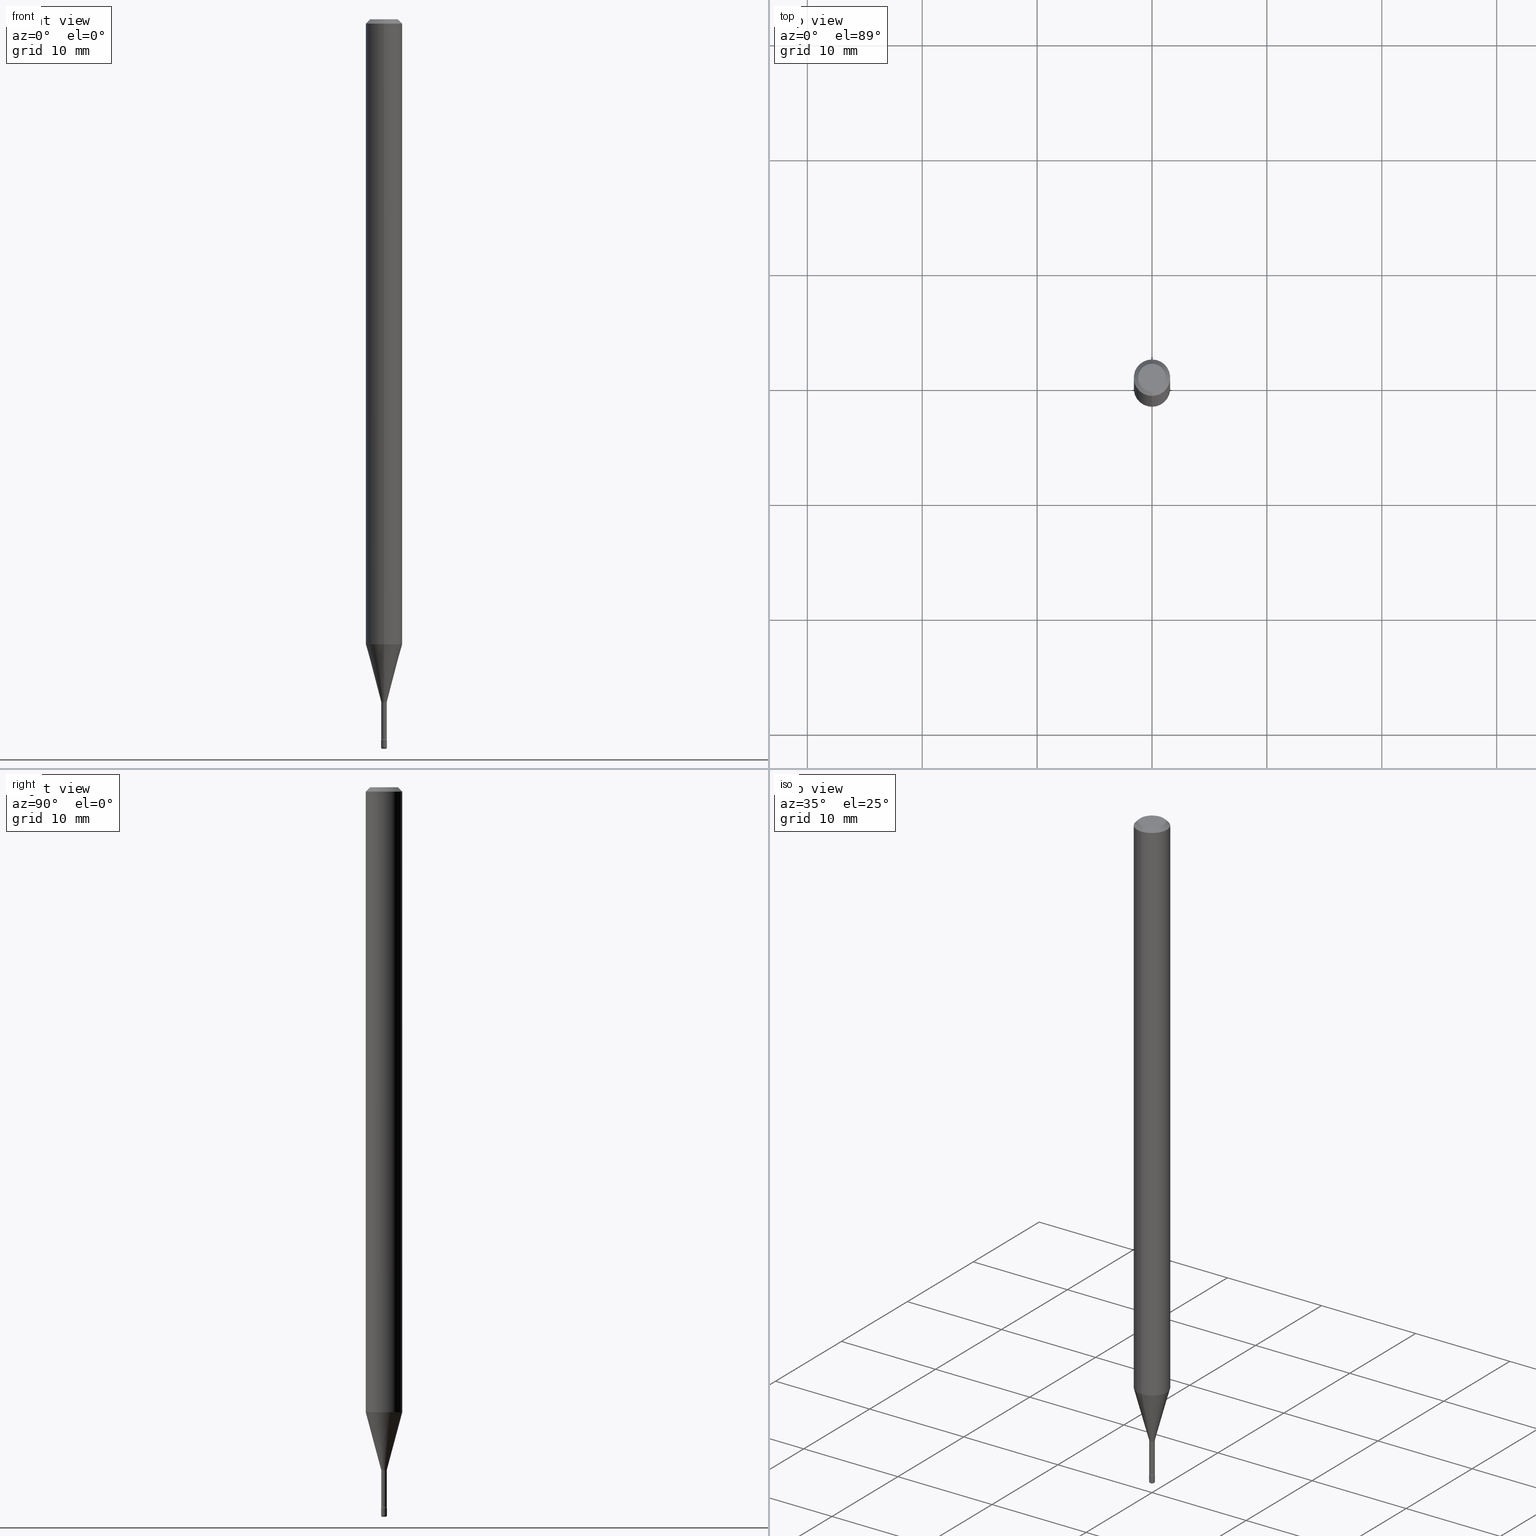
[diagram: canonical four-view strip — front | top / right | iso, engineering-drawing reading convention]
A machine part, canonical four-view strip (front | top / right | iso — engineering-drawing reading convention). The complete STEP part file that produces these views, byte-faithful:
ISO-10303-21;
HEADER;
FILE_DESCRIPTION (( 'STEP AP203' ),
    '1' );
FILE_NAME ('08888.STEP',
    '2024-03-06T20:08:48',
    ( '' ),
    ( '' ),
    'SwSTEP 2.0',
    'SolidWorks 2023',
    '' );
FILE_SCHEMA (( 'CONFIG_CONTROL_DESIGN' ));
ENDSEC;

DATA;
#1 = VECTOR ( 'NONE', #485, 39.37007874015748143 ) ;
#2 = FACE_OUTER_BOUND ( 'NONE', #482, .T. ) ;
#3 = CARTESIAN_POINT ( 'NONE',  ( 0.005000000000000000104, -8.746160753802078401E-15, -2.495000000000000107 ) ) ;
#4 = EDGE_CURVE ( 'NONE', #62, #540, #100, .T. ) ;
#5 = COORDINATED_UNIVERSAL_TIME_OFFSET ( 5, 0, .BEHIND. ) ;
#6 = CARTESIAN_POINT ( 'NONE',  ( -4.364351673553916201E-16, -0.06250000000000000000, 6.962923296629373806E-16 ) ) ;
#7 = ORIENTED_EDGE ( 'NONE', *, *, #40, .F. ) ;
#8 = CYLINDRICAL_SURFACE ( 'NONE', #407, 0.06250000000000000000 ) ;
#9 = EDGE_LOOP ( 'NONE', ( #135, #359, #176, #226 ) ) ;
#10 = DIRECTION ( 'NONE',  ( 1.000000000000000000, -7.105427357601001070E-15, 4.926315772496377807E-29 ) ) ;
#11 = TOROIDAL_SURFACE ( 'NONE', #287, 0.02440000000000000155, 0.01500000000000002547 ) ;
#12 = AXIS2_PLACEMENT_3D ( 'NONE', #30, #204, #202 ) ;
#13 = EDGE_LOOP ( 'NONE', ( #114, #302, #339, #211 ) ) ;
#14 = CYLINDRICAL_SURFACE ( 'NONE', #421, 0.01000000000000000021 ) ;
#15 = VERTEX_POINT ( 'NONE', #452 ) ;
#16 = DIRECTION ( 'NONE',  ( -2.445468806185136597E-29, 3.491481338843145583E-15, 1.000000000000000000 ) ) ;
#17 = ORIENTED_EDGE ( 'NONE', *, *, #334, .T. ) ;
#18 = DIRECTION ( 'NONE',  ( 0.000000000000000000, 0.000000000000000000, 1.000000000000000000 ) ) ;
#19 = FACE_OUTER_BOUND ( 'NONE', #121, .T. ) ;
#20 = VECTOR ( 'NONE', #144, 39.37007874015748143 ) ;
#21 = ORIENTED_EDGE ( 'NONE', *, *, #276, .T. ) ;
#22 = AXIS2_PLACEMENT_3D ( 'NONE', #526, #49, #285 ) ;
#23 = EDGE_CURVE ( 'NONE', #62, #83, #547, .T. ) ;
#24 = CARTESIAN_POINT ( 'NONE',  ( 1.733724275255247796E-16, 0.02439999999999140079, -2.465800000000000214 ) ) ;
#25 = ORIENTED_EDGE ( 'NONE', *, *, #117, .F. ) ;
#26 = DIRECTION ( 'NONE',  ( -6.982962677686265922E-15, -1.000000000000000000, 4.370956789862821150E-15 ) ) ;
#27 = DIRECTION ( 'NONE',  ( -6.982962677686263555E-15, -1.000000000000000000, 0.000000000000000000 ) ) ;
#28 = AXIS2_PLACEMENT_3D ( 'NONE', #124, #257, #127 ) ;
#29 = DIRECTION ( 'NONE',  ( 2.438088387897960049E-29, -3.491481338843145188E-15, -1.000000000000000000 ) ) ;
#30 = CARTESIAN_POINT ( 'NONE',  ( 6.040270775970876933E-29, -8.624012144097238521E-15, -2.470000000000000195 ) ) ;
#31 = EDGE_CURVE ( 'NONE', #259, #411, #242, .T. ) ;
#32 = VECTOR ( 'NONE', #269, 39.37007874015748854 ) ;
#33 = COORDINATED_UNIVERSAL_TIME_OFFSET ( 5, 0, .BEHIND. ) ;
#34 = CIRCLE ( 'NONE', #93, 0.005000000000000042605 ) ;
#35 = PERSON_AND_ORGANIZATION ( #560, #189 ) ;
#36 = MANIFOLD_SOLID_BREP ( 'Body-Move/Copy2[2]', #239 ) ;
#37 = ORIENTED_EDGE ( 'NONE', *, *, #40, .T. ) ;
#38 = CALENDAR_DATE ( 2024, 6, 3 ) ;
#39 = DIRECTION ( 'NONE',  ( -2.445453755453795863E-29, 3.491502892347059895E-15, 1.000000000000000000 ) ) ;
#40 = EDGE_CURVE ( 'NONE', #171, #251, #278, .T. ) ;
#41 = UNCERTAINTY_MEASURE_WITH_UNIT (LENGTH_MEASURE( 1.000000000000000082E-05 ), #438, 'distance_accuracy_value', 'NONE');
#42 = ORIENTED_EDGE ( 'NONE', *, *, #295, .T. ) ;
#43 = DATE_AND_TIME ( #470, #73 ) ;
#44 = AXIS2_PLACEMENT_3D ( 'NONE', #331, #374, #207 ) ;
#45 = ADVANCED_FACE ( 'NONE', ( #336 ), #212, .T. ) ;
#46 = CARTESIAN_POINT ( 'NONE',  ( -4.364351673553393088E-16, -0.06250000000000748013, -2.141828102118092936 ) ) ;
#47 = FACE_OUTER_BOUND ( 'NONE', #180, .T. ) ;
#48 = ORIENTED_EDGE ( 'NONE', *, *, #23, .F. ) ;
#49 = DIRECTION ( 'NONE',  ( -2.445468806185136597E-29, 3.491481338843145583E-15, 1.000000000000000000 ) ) ;
#50 = EDGE_CURVE ( 'NONE', #479, #490, #199, .T. ) ;
#51 = CARTESIAN_POINT ( 'NONE',  ( 6.101444671431915719E-29, -8.711245940413648329E-15, -2.495000000000000107 ) ) ;
#52 = TOROIDAL_SURFACE ( 'NONE', #271, 0.02440000000000000849, 0.01499999999999999424 ) ;
#53 = CARTESIAN_POINT ( 'NONE',  ( 5.727226287614814942E-29, -8.176961266471039436E-15, -2.341974787463811047 ) ) ;
#54 = AXIS2_PLACEMENT_3D ( 'NONE', #67, #18, #107 ) ;
#55 = ORIENTED_EDGE ( 'NONE', *, *, #50, .F. ) ;
#56 = DIRECTION ( 'NONE',  ( 1.000000000000000000, -6.982962677686302998E-15, 4.883557194083125793E-29 ) ) ;
#57 = DIRECTION ( 'NONE',  ( -2.438088387897960049E-29, 3.491481338843145188E-15, 1.000000000000000000 ) ) ;
#58 = CARTESIAN_POINT ( 'NONE',  ( 6.623565557453591180E-46, -9.458870503625792755E-32, -2.708816340570351685E-17 ) ) ;
#59 = ORIENTED_EDGE ( 'NONE', *, *, #532, .F. ) ;
#60 = CARTESIAN_POINT ( 'NONE',  ( 6.030036982291310238E-29, -8.609294685319429365E-15, -2.465800000000000214 ) ) ;
#61 = EDGE_CURVE ( 'NONE', #411, #490, #34, .T. ) ;
#62 = VERTEX_POINT ( 'NONE', #369 ) ;
#63 = CARTESIAN_POINT ( 'NONE',  ( 6.029999870197970661E-29, -8.609347831949380766E-15, -2.465800000000000214 ) ) ;
#64 = FACE_OUTER_BOUND ( 'NONE', #139, .T. ) ;
#65 = CIRCLE ( 'NONE', #166, 0.04750000000000000749 ) ;
#66 = CARTESIAN_POINT ( 'NONE',  ( -1.703842893354876449E-16, -0.02440000000000817904, -2.341974787463811047 ) ) ;
#67 = CARTESIAN_POINT ( 'NONE',  ( 0.000000000000000000, 0.000000000000000000, 0.000000000000000000 ) ) ;
#68 = CARTESIAN_POINT ( 'NONE',  ( 6.040307951277287977E-29, -8.623958906942569995E-15, -2.470000000000000195 ) ) ;
#69 = ORIENTED_EDGE ( 'NONE', *, *, #563, .T. ) ;
#70 = CARTESIAN_POINT ( 'NONE',  ( -3.773273898774340269E-16, -0.04750000000000000749, 1.387582239807818346E-16 ) ) ;
#71 = DIRECTION ( 'NONE',  ( -6.982962677686265922E-15, -1.000000000000000000, 3.491502892347058712E-15 ) ) ;
#72 = AXIS2_PLACEMENT_3D ( 'NONE', #234, #400, #362 ) ;
#73 = LOCAL_TIME ( 15, 8, 48.00000000000000000, #5 ) ;
#74 = CARTESIAN_POINT ( 'NONE',  ( 6.030036982291310238E-29, -8.609294685319429365E-15, -2.465800000000000214 ) ) ;
#75 = CARTESIAN_POINT ( 'NONE',  ( 6.040307951277287977E-29, -8.623958906942569995E-15, -2.470000000000000195 ) ) ;
#76 = DIRECTION ( 'NONE',  ( -2.445453755453795863E-29, 3.491502892347059895E-15, 1.000000000000000000 ) ) ;
#77 = EDGE_CURVE ( 'NONE', #148, #540, #344, .T. ) ;
#78 = EDGE_CURVE ( 'NONE', #543, #83, #539, .T. ) ;
#79 = AXIS2_PLACEMENT_3D ( 'NONE', #500, #264, #450 ) ;
#80 = TOROIDAL_SURFACE ( 'NONE', #280, 0.005000000000000000104, 0.005000000000000041737 ) ;
#81 = AXIS2_PLACEMENT_3D ( 'NONE', #567, #161, #27 ) ;
#82 = CARTESIAN_POINT ( 'NONE',  ( 6.679101716150976795E-17, 0.009399999999991822883, -2.341974787463811047 ) ) ;
#83 = VERTEX_POINT ( 'NONE', #529 ) ;
#84 = PERSON_AND_ORGANIZATION_ROLE ( 'classification_officer' ) ;
#85 = ADVANCED_FACE ( 'NONE', ( #47 ), #513, .F. ) ;
#86 = CARTESIAN_POINT ( 'NONE',  ( -6.563984917019071315E-17, -0.009400000000008625414, -2.465800000000000214 ) ) ;
#87 = DIRECTION ( 'NONE',  ( -2.445468806185136597E-29, 3.491481338843145583E-15, 1.000000000000000000 ) ) ;
#88 = ORIENTED_EDGE ( 'NONE', *, *, #157, .T. ) ;
#89 = CARTESIAN_POINT ( 'NONE',  ( -0.01000000000000002102, -8.640191666837638248E-15, -2.495000000000000107 ) ) ;
#90 = CC_DESIGN_DATE_AND_TIME_ASSIGNMENT ( #252, #209, ( #197 ) ) ;
#91 = DIRECTION ( 'NONE',  ( -2.445468806185136597E-29, 3.491481338843145583E-15, 1.000000000000000000 ) ) ;
#92 = ORIENTED_EDGE ( 'NONE', *, *, #61, .T. ) ;
#93 = AXIS2_PLACEMENT_3D ( 'NONE', #3, #108, #115 ) ;
#94 = CYLINDRICAL_SURFACE ( 'NONE', #22, 0.01000000000000000021 ) ;
#95 = CIRCLE ( 'NONE', #81, 0.01499999999999999771 ) ;
#96 = CARTESIAN_POINT ( 'NONE',  ( 1.733724275255216981E-16, 0.02439999999999182406, -2.341974787463811047 ) ) ;
#97 = DIRECTION ( 'NONE',  ( 2.445453755453795582E-29, -3.491502892347059895E-15, -1.000000000000000000 ) ) ;
#98 = EDGE_CURVE ( 'NONE', #429, #171, #388, .T. ) ;
#99 = CARTESIAN_POINT ( 'NONE',  ( -4.364351673553912750E-16, -0.06250000000000005551, -0.01499999999999981036 ) ) ;
#100 = LINE ( 'NONE', #505, #32 ) ;
#101 = TOROIDAL_SURFACE ( 'NONE', #365, 0.02440000000000000849, 0.01499999999999999424 ) ;
#102 = FACE_OUTER_BOUND ( 'NONE', #389, .T. ) ;
#103 = LOCAL_TIME ( 15, 8, 48.00000000000000000, #33 ) ;
#104 = ORIENTED_EDGE ( 'NONE', *, *, #31, .F. ) ;
#105 = EDGE_CURVE ( 'NONE', #411, #259, #415, .T. ) ;
#106 = ORIENTED_EDGE ( 'NONE', *, *, #390, .F. ) ;
#107 = DIRECTION ( 'NONE',  ( 1.000000000000000000, 0.000000000000000000, 0.000000000000000000 ) ) ;
#108 = DIRECTION ( 'NONE',  ( -6.982962677686266711E-15, -1.000000000000000000, 3.491481338843145583E-15 ) ) ;
#109 = DIRECTION ( 'NONE',  ( -6.982962677686265922E-15, -1.000000000000000000, 3.491502892347060290E-15 ) ) ;
#110 = CYLINDRICAL_SURFACE ( 'NONE', #382, 0.009400000000000007308 ) ;
#111 = ORIENTED_EDGE ( 'NONE', *, *, #419, .F. ) ;
#112 = CARTESIAN_POINT ( 'NONE',  ( -0.01000000000000000021, 7.105427357601002007E-17, -4.918935090254906272E-31 ) ) ;
#113 = CIRCLE ( 'NONE', #511, 0.01000000000000000021 ) ;
#114 = ORIENTED_EDGE ( 'NONE', *, *, #295, .F. ) ;
#115 = DIRECTION ( 'NONE',  ( 1.000000000000000000, -6.982962677686078962E-15, 0.000000000000000000 ) ) ;
#116 = AXIS2_PLACEMENT_3D ( 'NONE', #358, #544, #227 ) ;
#117 = EDGE_CURVE ( 'NONE', #553, #543, #286, .T. ) ;
#118 = CC_DESIGN_PERSON_AND_ORGANIZATION_ASSIGNMENT ( #375, #430, ( #475 ) ) ;
#119 = CALENDAR_DATE ( 2024, 6, 3 ) ;
#120 = FACE_OUTER_BOUND ( 'NONE', #337, .T. ) ;
#121 = EDGE_LOOP ( 'NONE', ( #456, #541, #446, #228 ) ) ;
#122 = AXIS2_PLACEMENT_3D ( 'NONE', #350, #403, #347 ) ;
#123 = APPROVAL_PERSON_ORGANIZATION ( #167, #499, #489 ) ;
#124 = CARTESIAN_POINT ( 'NONE',  ( 5.727191039181482239E-29, -8.177011744233787688E-15, -2.341974787463811047 ) ) ;
#125 = DIRECTION ( 'NONE',  ( 2.445453755453795863E-29, -3.491502892347059895E-15, -1.000000000000000000 ) ) ;
#126 = EDGE_LOOP ( 'NONE', ( #59, #434, #92, #55 ) ) ;
#127 = DIRECTION ( 'NONE',  ( -6.982962677686265922E-15, -1.000000000000000000, 0.000000000000000000 ) ) ;
#128 = ORIENTED_EDGE ( 'NONE', *, *, #276, .F. ) ;
#129 = DATE_AND_TIME ( #119, #454 ) ;
#130 = AXIS2_PLACEMENT_3D ( 'NONE', #468, #420, #458 ) ;
#131 = DIRECTION ( 'NONE',  ( -2.445453755453795863E-29, 3.491502892347059895E-15, 1.000000000000000000 ) ) ;
#132 = CC_DESIGN_APPROVAL ( #306, ( #475 ) ) ;
#133 = ADVANCED_FACE ( 'NONE', ( #216 ), #8, .T. ) ;
#134 = FACE_OUTER_BOUND ( 'NONE', #191, .T. ) ;
#135 = ORIENTED_EDGE ( 'NONE', *, *, #284, .T. ) ;
#136 = ORIENTED_EDGE ( 'NONE', *, *, #401, .F. ) ;
#137 = PERSON_AND_ORGANIZATION_ROLE ( 'design_owner' ) ;
#138 = CARTESIAN_POINT ( 'NONE',  ( 3.840629472727447874E-16, 0.04750000000000000749, -1.929345507921888683E-16 ) ) ;
#139 = EDGE_LOOP ( 'NONE', ( #316, #104 ) ) ;
#140 = LINE ( 'NONE', #542, #187 ) ;
#141 = ORIENTED_EDGE ( 'NONE', *, *, #284, .F. ) ;
#142 = ADVANCED_FACE ( 'NONE', ( #134 ), #101, .F. ) ;
#143 = TOROIDAL_SURFACE ( 'NONE', #130, 0.02440000000000000155, 0.01500000000000002547 ) ;
#144 = DIRECTION ( 'NONE',  ( 4.937700262164546464E-15, 0.7071067811865449082, -0.7071067811865501263 ) ) ;
#145 = CONICAL_SURFACE ( 'NONE', #235, 0.009911112605663982209, 0.2617993877991500740 ) ;
#146 = VERTEX_POINT ( 'NONE', #301 ) ;
#147 = DIRECTION ( 'NONE',  ( -6.982962677686265922E-15, -1.000000000000000000, 3.491502892347059895E-15 ) ) ;
#148 = VERTEX_POINT ( 'NONE', #318 ) ;
#149 = FACE_OUTER_BOUND ( 'NONE', #493, .T. ) ;
#150 = ORIENTED_EDGE ( 'NONE', *, *, #563, .F. ) ;
#151 = EDGE_CURVE ( 'NONE', #553, #146, #327, .T. ) ;
#152 = AXIS2_PLACEMENT_3D ( 'NONE', #63, #409, #156 ) ;
#153 = CIRCLE ( 'NONE', #442, 0.04750000000000000749 ) ;
#154 = CIRCLE ( 'NONE', #366, 0.009400000000000015982 ) ;
#155 = DIRECTION ( 'NONE',  ( -2.445468806185136597E-29, 3.491481338843145583E-15, 1.000000000000000000 ) ) ;
#156 = DIRECTION ( 'NONE',  ( -6.982962677686265922E-15, -1.000000000000000000, 0.000000000000000000 ) ) ;
#157 = EDGE_CURVE ( 'NONE', #146, #263, #113, .T. ) ;
#158 = CARTESIAN_POINT ( 'NONE',  ( 7.042269065260616487E-17, 0.009911112605655818600, -2.338092501787273125 ) ) ;
#159 = CIRCLE ( 'NONE', #116, 0.01000000000000000021 ) ;
#160 = CIRCLE ( 'NONE', #28, 0.009399999999999998634 ) ;
#161 = DIRECTION ( 'NONE',  ( -1.000000000000000000, 6.982962677686265922E-15, -4.883557194083112340E-29 ) ) ;
#162 = VERTEX_POINT ( 'NONE', #138 ) ;
#163 = PERSON_AND_ORGANIZATION ( #560, #189 ) ;
#164 = CARTESIAN_POINT ( 'NONE',  ( 6.029999870197970661E-29, -8.609347831949380766E-15, -2.465800000000000214 ) ) ;
#165 = ORIENTED_EDGE ( 'NONE', *, *, #194, .T. ) ;
#166 = AXIS2_PLACEMENT_3D ( 'NONE', #58, #312, #552 ) ;
#167 = PERSON_AND_ORGANIZATION ( #560, #189 ) ;
#168 = CARTESIAN_POINT ( 'NONE',  ( 0.01000000000000000021, -6.982962677686265724E-17, 4.876176775795935968E-31 ) ) ;
#169 = VERTEX_POINT ( 'NONE', #551 ) ;
#170 = COORDINATED_UNIVERSAL_TIME_OFFSET ( 5, 0, .BEHIND. ) ;
#171 = VERTEX_POINT ( 'NONE', #99 ) ;
#172 = APPROVAL_DATE_TIME ( #527, #406 ) ;
#173 = EDGE_CURVE ( 'NONE', #479, #169, #229, .T. ) ;
#174 = DIRECTION ( 'NONE',  ( 6.982962677686265922E-15, 1.000000000000000000, -3.483106191921935554E-15 ) ) ;
#175 = CARTESIAN_POINT ( 'NONE',  ( -1.169113584055446105E-44, 1.669184350826100908E-30, 4.780733988912460139E-16 ) ) ;
#176 = ORIENTED_EDGE ( 'NONE', *, *, #523, .F. ) ;
#177 = AXIS2_PLACEMENT_3D ( 'NONE', #571, #125, #291 ) ;
#178 = AXIS2_PLACEMENT_3D ( 'NONE', #516, #283, #467 ) ;
#179 = DIRECTION ( 'NONE',  ( 1.000000000000000000, -6.982962677686302998E-15, 4.883557194083125793E-29 ) ) ;
#180 = EDGE_LOOP ( 'NONE', ( #69, #17 ) ) ;
#181 = DIRECTION ( 'NONE',  ( -2.445468806185136877E-29, 3.491481338843145188E-15, 1.000000000000000000 ) ) ;
#182 = ADVANCED_FACE ( 'NONE', ( #492 ), #262, .F. ) ;
#183 = APPLICATION_CONTEXT ( 'configuration controlled 3d designs of mechanical parts and assemblies' ) ;
#184 = ORIENTED_EDGE ( 'NONE', *, *, #510, .T. ) ;
#185 = DIRECTION ( 'NONE',  ( 1.000000000000000000, -6.982962677686265922E-15, 4.876176775795935793E-29 ) ) ;
#186 = ORIENTED_EDGE ( 'NONE', *, *, #61, .F. ) ;
#187 = VECTOR ( 'NONE', #504, 39.37007874015748143 ) ;
#188 = DIRECTION ( 'NONE',  ( -2.445453755453795863E-29, 3.491502892347059895E-15, 1.000000000000000000 ) ) ;
#189 = ORGANIZATION ( 'UNSPECIFIED', 'UNSPECIFIED', '' ) ;
#190 = EDGE_LOOP ( 'NONE', ( #379, #449 ) ) ;
#191 = EDGE_LOOP ( 'NONE', ( #425, #501, #88, #274 ) ) ;
#192 = CARTESIAN_POINT ( 'NONE',  ( 5.727191039181482239E-29, -8.177011744233787688E-15, -2.341974787463811047 ) ) ;
#193 = DIRECTION ( 'NONE',  ( -2.445453755453795863E-29, 3.491502892347059895E-15, 1.000000000000000000 ) ) ;
#194 = EDGE_CURVE ( 'NONE', #490, #479, #159, .T. ) ;
#195 = DIRECTION ( 'NONE',  ( -2.445453755453795863E-29, 3.491502892347059895E-15, 1.000000000000000000 ) ) ;
#196 = DIRECTION ( 'NONE',  ( -2.445453755453795863E-29, 3.491502892347059895E-15, 1.000000000000000000 ) ) ;
#197 = PRODUCT_DEFINITION ( 'UNKNOWN', '', #475, #325 ) ;
#198 = DIRECTION ( 'NONE',  ( -6.982962677686264344E-15, -1.000000000000000000, 0.000000000000000000 ) ) ;
#199 = CIRCLE ( 'NONE', #222, 0.01000000000000000021 ) ;
#200 = ADVANCED_FACE ( 'NONE', ( #149 ), #507, .T. ) ;
#201 = DIRECTION ( 'NONE',  ( -6.982962677686265922E-15, -1.000000000000000000, 3.491502892347059895E-15 ) ) ;
#202 = DIRECTION ( 'NONE',  ( -6.982962677686265922E-15, -1.000000000000000000, 0.000000000000000000 ) ) ;
#203 = CIRCLE ( 'NONE', #178, 0.01000000000000000021 ) ;
#204 = DIRECTION ( 'NONE',  ( -2.445453755453795863E-29, 3.491502892347059895E-15, 1.000000000000000000 ) ) ;
#205 = PERSON_AND_ORGANIZATION ( #560, #189 ) ;
#206 = DIRECTION ( 'NONE',  ( 7.105427357601000281E-15, 1.000000000000000000, 0.000000000000000000 ) ) ;
#207 = DIRECTION ( 'NONE',  ( -6.982962677686265922E-15, -1.000000000000000000, 3.483106191921935554E-15 ) ) ;
#208 = ORIENTED_EDGE ( 'NONE', *, *, #494, .F. ) ;
#209 = DATE_TIME_ROLE ( 'creation_date' ) ;
#210 = DIRECTION ( 'NONE',  ( -6.982962677686265133E-15, -1.000000000000000000, 3.491502892347059895E-15 ) ) ;
#211 = ORIENTED_EDGE ( 'NONE', *, *, #77, .F. ) ;
#212 = CONICAL_SURFACE ( 'NONE', #177, 0.06250000000000000000, 0.7853981633974480570 ) ;
#213 = APPROVAL_DATE_TIME ( #43, #499 ) ;
#214 = CONICAL_SURFACE ( 'NONE', #566, 0.06250000000000000000, 0.7853981633974480570 ) ;
#215 = LINE ( 'NONE', #338, #408 ) ;
#216 = FACE_OUTER_BOUND ( 'NONE', #249, .T. ) ;
#217 = ORIENTED_EDGE ( 'NONE', *, *, #173, .T. ) ;
#218 = FACE_OUTER_BOUND ( 'NONE', #363, .T. ) ;
#219 = DIRECTION ( 'NONE',  ( -2.445453755453796143E-29, 3.491502892347059895E-15, 1.000000000000000000 ) ) ;
#220 = ORIENTED_EDGE ( 'NONE', *, *, #346, .F. ) ;
#221 = DIRECTION ( 'NONE',  ( -2.445453755453796143E-29, 3.491502892347059895E-15, 1.000000000000000000 ) ) ;
#222 = AXIS2_PLACEMENT_3D ( 'NONE', #427, #87, #380 ) ;
#223 = LOCAL_TIME ( 15, 8, 48.00000000000000000, #170 ) ;
#224 =( NAMED_UNIT ( * ) PLANE_ANGLE_UNIT ( ) SI_UNIT ( $, .RADIAN. ) );
#225 = DIRECTION ( 'NONE',  ( -6.982962677686265922E-15, -1.000000000000000000, 3.491502892347059895E-15 ) ) ;
#226 = ORIENTED_EDGE ( 'NONE', *, *, #510, .F. ) ;
#227 = DIRECTION ( 'NONE',  ( 1.000000000000000000, -6.982962677686332186E-15, 0.000000000000000000 ) ) ;
#228 = ORIENTED_EDGE ( 'NONE', *, *, #562, .F. ) ;
#229 = LINE ( 'NONE', #112, #515 ) ;
#230 = EDGE_LOOP ( 'NONE', ( #25, #292, #184, #549 ) ) ;
#231 = DIRECTION ( 'NONE',  ( -2.445453755453795863E-29, 3.491502892347059895E-15, 1.000000000000000000 ) ) ;
#232 = CIRCLE ( 'NONE', #152, 0.009400000000000015982 ) ;
#233 = CARTESIAN_POINT ( 'NONE',  ( -1.169113584055446105E-44, 1.669184350826100908E-30, 4.780733988912460139E-16 ) ) ;
#234 = CARTESIAN_POINT ( 'NONE',  ( 5.717697089094048605E-29, -8.163456732565237736E-15, -2.338092501787273125 ) ) ;
#235 = AXIS2_PLACEMENT_3D ( 'NONE', #367, #131, #424 ) ;
#236 = ORIENTED_EDGE ( 'NONE', *, *, #78, .T. ) ;
#237 = ADVANCED_FACE ( 'NONE', ( #439 ), #80, .T. ) ;
#238 = EDGE_CURVE ( 'NONE', #148, #251, #140, .T. ) ;
#239 = CLOSED_SHELL ( 'NONE', ( #241, #355, #142, #45, #133, #279, #457, #244, #554, #85, #182, #293, #314, #377 ) ) ;
#240 = APPROVAL_PERSON_ORGANIZATION ( #396, #406, #413 ) ;
#241 = ADVANCED_FACE ( 'NONE', ( #102 ), #11, .F. ) ;
#242 = CIRCLE ( 'NONE', #460, 0.005000000000000000971 ) ;
#243 = VECTOR ( 'NONE', #521, 39.37007874015748143 ) ;
#244 = ADVANCED_FACE ( 'NONE', ( #19 ), #445, .T. ) ;
#245 = SECURITY_CLASSIFICATION_LEVEL ( 'unclassified' ) ;
#246 = CARTESIAN_POINT ( 'NONE',  ( 6.679101716144946940E-17, 0.009400000000000007308, 4.452532717031837182E-16 ) ) ;
#247 = DIRECTION ( 'NONE',  ( -2.445453755453795863E-29, 3.491502892347059895E-15, 1.000000000000000000 ) ) ;
#248 = ADVANCED_BREP_SHAPE_REPRESENTATION ( '08888', ( #417, #36, #54 ), #372 ) ;
#249 = EDGE_LOOP ( 'NONE', ( #320, #443, #7, #208 ) ) ;
#250 = CARTESIAN_POINT ( 'NONE',  ( 3.316907271900976589E-16, 0.04750000000000000749, 5.964623035628591559E-17 ) ) ;
#251 = VERTEX_POINT ( 'NONE', #447 ) ;
#252 = DATE_AND_TIME ( #340, #223 ) ;
#253 = AXIS2_PLACEMENT_3D ( 'NONE', #96, #483, #206 ) ;
#254 = DIRECTION ( 'NONE',  ( -1.000000000000000000, 7.105427357601060234E-15, 0.000000000000000000 ) ) ;
#255 = PRODUCT_RELATED_PRODUCT_CATEGORY ( 'detail', '', ( #502 ) ) ;
#256 = ORIENTED_EDGE ( 'NONE', *, *, #98, .T. ) ;
#257 = DIRECTION ( 'NONE',  ( -2.445453755453795863E-29, 3.491502892347059895E-15, 1.000000000000000000 ) ) ;
#258 = DIRECTION ( 'NONE',  ( 1.000000000000000000, -6.982962677686265922E-15, 4.876176775795935793E-29 ) ) ;
#259 = VERTEX_POINT ( 'NONE', #455 ) ;
#260 = ORIENTED_EDGE ( 'NONE', *, *, #328, .F. ) ;
#261 = AXIS2_PLACEMENT_3D ( 'NONE', #233, #188, #109 ) ;
#262 = PLANE ( 'NONE',  #122 ) ;
#263 = VERTEX_POINT ( 'NONE', #399 ) ;
#264 = DIRECTION ( 'NONE',  ( -2.445453755453795863E-29, 3.491502892347059895E-15, 1.000000000000000000 ) ) ;
#265 = EDGE_LOOP ( 'NONE', ( #305, #405, #398, #136 ) ) ;
#266 = CARTESIAN_POINT ( 'NONE',  ( 5.237741575861167467E-29, -7.478199013455536656E-15, -2.141828102118093380 ) ) ;
#267 = DIRECTION ( 'NONE',  ( 7.105427357601001859E-15, 1.000000000000000000, 0.000000000000000000 ) ) ;
#268 = ADVANCED_FACE ( 'NONE', ( #397 ), #14, .T. ) ;
#269 = DIRECTION ( 'NONE',  ( -1.807323732225328562E-15, -0.2588190451025179639, 0.9659258262890690894 ) ) ;
#270 =( LENGTH_UNIT ( ) NAMED_UNIT ( * ) SI_UNIT ( $, .METRE. ) );
#271 = AXIS2_PLACEMENT_3D ( 'NONE', #74, #412, #201 ) ;
#272 = DIRECTION ( 'NONE',  ( -2.445453755453795863E-29, 3.491502892347059895E-15, 1.000000000000000000 ) ) ;
#273 = CARTESIAN_POINT ( 'NONE',  ( -1.169113584055446105E-44, 1.669184350826100908E-30, 4.780733988912460139E-16 ) ) ;
#274 = ORIENTED_EDGE ( 'NONE', *, *, #444, .F. ) ;
#275 = DIRECTION ( 'NONE',  ( -6.982962677686265133E-15, -1.000000000000000000, 0.000000000000000000 ) ) ;
#276 = EDGE_CURVE ( 'NONE', #162, #251, #392, .T. ) ;
#277 = DIRECTION ( 'NONE',  ( 1.000000000000000000, -6.982962677686235945E-15, 0.000000000000000000 ) ) ;
#278 = CIRCLE ( 'NONE', #44, 0.06250000000000000000 ) ;
#279 = ADVANCED_FACE ( 'NONE', ( #311 ), #486, .T. ) ;
#280 = AXIS2_PLACEMENT_3D ( 'NONE', #307, #546, #179 ) ;
#281 = CC_DESIGN_SECURITY_CLASSIFICATION ( #288, ( #475 ) ) ;
#282 = COORDINATED_UNIVERSAL_TIME_OFFSET ( 5, 0, .BEHIND. ) ;
#283 = DIRECTION ( 'NONE',  ( -2.445468806185136597E-29, 3.491481338843145583E-15, 1.000000000000000000 ) ) ;
#284 = EDGE_CURVE ( 'NONE', #545, #553, #232, .T. ) ;
#285 = DIRECTION ( 'NONE',  ( 1.000000000000000000, -6.982962677686265922E-15, 4.876176775795935793E-29 ) ) ;
#286 = LINE ( 'NONE', #246, #548 ) ;
#287 = AXIS2_PLACEMENT_3D ( 'NONE', #53, #272, #225 ) ;
#288 = SECURITY_CLASSIFICATION ( '', '', #245 ) ;
#289 = ORIENTED_EDGE ( 'NONE', *, *, #484, .T. ) ;
#290 = APPROVAL_STATUS ( 'not_yet_approved' ) ;
#291 = DIRECTION ( 'NONE',  ( 6.982962677686265922E-15, 1.000000000000000000, -3.483106191921935554E-15 ) ) ;
#292 = ORIENTED_EDGE ( 'NONE', *, *, #514, .T. ) ;
#293 = ADVANCED_FACE ( 'NONE', ( #329 ), #52, .F. ) ;
#294 = CARTESIAN_POINT ( 'NONE',  ( 6.892264536879008027E-17, 0.009399999999991406549, -2.465800000000000214 ) ) ;
#295 = EDGE_CURVE ( 'NONE', #441, #148, #464, .T. ) ;
#296 = EDGE_LOOP ( 'NONE', ( #351, #220, #437, #488 ) ) ;
#297 = CIRCLE ( 'NONE', #471, 0.06250000000000000000 ) ;
#298 = APPROVAL_STATUS ( 'not_yet_approved' ) ;
#299 = AXIS2_PLACEMENT_3D ( 'NONE', #341, #247, #426 ) ;
#300 = DIRECTION ( 'NONE',  ( 2.445453755453795863E-29, -3.491502892347059895E-15, -1.000000000000000000 ) ) ;
#301 = CARTESIAN_POINT ( 'NONE',  ( 7.105427357607038025E-17, 0.009999999999991373428, -2.470000000000000195 ) ) ;
#302 = ORIENTED_EDGE ( 'NONE', *, *, #419, .T. ) ;
#303 = APPLICATION_PROTOCOL_DEFINITION ( 'international standard', 'config_control_design', 1994, #534 ) ;
#304 = CARTESIAN_POINT ( 'NONE',  ( 6.040270775970876933E-29, -8.624012144097238521E-15, -2.470000000000000195 ) ) ;
#305 = ORIENTED_EDGE ( 'NONE', *, *, #173, .F. ) ;
#306 = APPROVAL ( #290, 'UNSPECIFIED' ) ;
#307 = CARTESIAN_POINT ( 'NONE',  ( 6.101444671431915719E-29, -8.711245940413648329E-15, -2.495000000000000107 ) ) ;
#308 = ORIENTED_EDGE ( 'NONE', *, *, #463, .F. ) ;
#309 = AXIS2_PLACEMENT_3D ( 'NONE', #192, #195, #557 ) ;
#310 = LOCAL_TIME ( 15, 8, 48.00000000000000000, #282 ) ;
#311 = FACE_OUTER_BOUND ( 'NONE', #348, .T. ) ;
#312 = DIRECTION ( 'NONE',  ( -2.445453755453795863E-29, 3.491502892347059895E-15, 1.000000000000000000 ) ) ;
#313 = EDGE_LOOP ( 'NONE', ( #509, #256, #37, #128 ) ) ;
#314 = ADVANCED_FACE ( 'NONE', ( #384 ), #503, .T. ) ;
#315 =( NAMED_UNIT ( * ) SI_UNIT ( $, .STERADIAN. ) SOLID_ANGLE_UNIT ( ) );
#316 = ORIENTED_EDGE ( 'NONE', *, *, #105, .F. ) ;
#317 = APPLICATION_PROTOCOL_DEFINITION ( 'international standard', 'config_control_design', 1994, #183 ) ;
#318 = CARTESIAN_POINT ( 'NONE',  ( 4.440892098501147796E-16, 0.06249999999999251293, -2.141828102118093380 ) ) ;
#319 = CC_DESIGN_PERSON_AND_ORGANIZATION_ASSIGNMENT ( #480, #476, ( #197 ) ) ;
#320 = ORIENTED_EDGE ( 'NONE', *, *, #328, .T. ) ;
#321 = AXIS2_PLACEMENT_3D ( 'NONE', #24, #10, #267 ) ;
#322 = PLANE ( 'NONE',  #371 ) ;
#323 = CIRCLE ( 'NONE', #253, 0.01500000000000002720 ) ;
#324 = FACE_OUTER_BOUND ( 'NONE', #296, .T. ) ;
#325 = DESIGN_CONTEXT ( 'detailed design', #534, 'design' ) ;
#326 = APPROVAL_STATUS ( 'not_yet_approved' ) ;
#327 = CIRCLE ( 'NONE', #321, 0.01499999999999998904 ) ;
#328 = EDGE_CURVE ( 'NONE', #540, #148, #297, .T. ) ;
#329 = FACE_OUTER_BOUND ( 'NONE', #335, .T. ) ;
#330 = CARTESIAN_POINT ( 'NONE',  ( 0.005000000000000000971, -8.763618160496296592E-15, -2.500000000000000000 ) ) ;
#331 = CARTESIAN_POINT ( 'NONE',  ( 3.668180633180700135E-31, -5.237254338520599679E-17, -0.01500000000000002720 ) ) ;
#332 = AXIS2_PLACEMENT_3D ( 'NONE', #435, #391, #71 ) ;
#333 = CC_DESIGN_APPROVAL ( #499, ( #288 ) ) ;
#334 = EDGE_CURVE ( 'NONE', #429, #162, #65, .T. ) ;
#335 = EDGE_LOOP ( 'NONE', ( #530, #141, #556, #383 ) ) ;
#336 = FACE_OUTER_BOUND ( 'NONE', #313, .T. ) ;
#337 = EDGE_LOOP ( 'NONE', ( #165, #217, #106, #308 ) ) ;
#338 = CARTESIAN_POINT ( 'NONE',  ( -6.563984917025095007E-17, -0.009400000000000007308, 5.108935260793084083E-16 ) ) ;
#339 = ORIENTED_EDGE ( 'NONE', *, *, #4, .T. ) ;
#340 = CALENDAR_DATE ( 2024, 6, 3 ) ;
#341 = CARTESIAN_POINT ( 'NONE',  ( 3.668180633180700135E-31, -5.237254338520599679E-17, -0.01500000000000002720 ) ) ;
#342 = DIRECTION ( 'NONE',  ( -2.445453755453795863E-29, 3.491502892347059895E-15, 1.000000000000000000 ) ) ;
#343 = AXIS2_PLACEMENT_3D ( 'NONE', #66, #410, #275 ) ;
#344 = CIRCLE ( 'NONE', #356, 0.06250000000000000000 ) ;
#345 = PERSON_AND_ORGANIZATION ( #560, #189 ) ;
#346 = EDGE_CURVE ( 'NONE', #62, #441, #496, .T. ) ;
#347 = DIRECTION ( 'NONE',  ( -6.982962677686265922E-15, -1.000000000000000000, 3.491502892347059895E-15 ) ) ;
#348 = EDGE_LOOP ( 'NONE', ( #354, #42, #260, #402 ) ) ;
#349 = DIRECTION ( 'NONE',  ( -2.445468806185136597E-29, 3.491481338843145583E-15, 1.000000000000000000 ) ) ;
#350 = CARTESIAN_POINT ( 'NONE',  ( 6.982962677692306673E-17, 0.009999999999991375163, -2.470000000000000195 ) ) ;
#351 = ORIENTED_EDGE ( 'NONE', *, *, #484, .F. ) ;
#352 = CARTESIAN_POINT ( 'NONE',  ( 4.364351673553919652E-16, 0.06249999999999995143, -0.01500000000000024578 ) ) ;
#353 = FACE_OUTER_BOUND ( 'NONE', #9, .T. ) ;
#354 = ORIENTED_EDGE ( 'NONE', *, *, #346, .T. ) ;
#355 = ADVANCED_FACE ( 'NONE', ( #353 ), #110, .T. ) ;
#356 = AXIS2_PLACEMENT_3D ( 'NONE', #266, #231, #26 ) ;
#357 = CIRCLE ( 'NONE', #422, 0.009911112605663982209 ) ;
#358 = CARTESIAN_POINT ( 'NONE',  ( 6.101444671431915719E-29, -8.711245940413648329E-15, -2.495000000000000107 ) ) ;
#359 = ORIENTED_EDGE ( 'NONE', *, *, #117, .T. ) ;
#360 = CC_DESIGN_PERSON_AND_ORGANIZATION_ASSIGNMENT ( #345, #137, ( #502 ) ) ;
#361 = DIRECTION ( 'NONE',  ( -6.982962677686265922E-15, -1.000000000000000000, 0.000000000000000000 ) ) ;
#362 = DIRECTION ( 'NONE',  ( -6.982962677686264344E-15, -1.000000000000000000, 0.000000000000000000 ) ) ;
#363 = EDGE_LOOP ( 'NONE', ( #535, #150, #21, #432 ) ) ;
#364 = CARTESIAN_POINT ( 'NONE',  ( 6.113672015462842613E-29, -8.728703347107864943E-15, -2.500000000000000000 ) ) ;
#365 = AXIS2_PLACEMENT_3D ( 'NONE', #60, #555, #147 ) ;
#366 = AXIS2_PLACEMENT_3D ( 'NONE', #164, #528, #385 ) ;
#367 = CARTESIAN_POINT ( 'NONE',  ( 5.717697089094048605E-29, -8.163456732565237736E-15, -2.338092501787273125 ) ) ;
#368 = CC_DESIGN_PERSON_AND_ORGANIZATION_ASSIGNMENT ( #205, #536, ( #475 ) ) ;
#369 = CARTESIAN_POINT ( 'NONE',  ( -6.920892941964028521E-17, -0.009911112605672145817, -2.338092501787273125 ) ) ;
#370 = ADVANCED_FACE ( 'NONE', ( #64 ), #322, .T. ) ;
#371 = AXIS2_PLACEMENT_3D ( 'NONE', #440, #29, #465 ) ;
#372 =( GEOMETRIC_REPRESENTATION_CONTEXT ( 3 ) GLOBAL_UNCERTAINTY_ASSIGNED_CONTEXT ( ( #41 ) ) GLOBAL_UNIT_ASSIGNED_CONTEXT ( ( #438, #224, #315 ) ) REPRESENTATION_CONTEXT ( 'NONE', 'WORKASPACE' ) );
#373 = APPROVAL_DATE_TIME ( #570, #306 ) ;
#374 = DIRECTION ( 'NONE',  ( -2.445453755453795863E-29, 3.491502892347059895E-15, 1.000000000000000000 ) ) ;
#375 = PERSON_AND_ORGANIZATION ( #560, #189 ) ;
#376 = LINE ( 'NONE', #6, #243 ) ;
#377 = ADVANCED_FACE ( 'NONE', ( #324 ), #143, .F. ) ;
#378 = CARTESIAN_POINT ( 'NONE',  ( 6.113672015462842613E-29, -8.728703347107864943E-15, -2.500000000000000000 ) ) ;
#379 = ORIENTED_EDGE ( 'NONE', *, *, #433, .F. ) ;
#380 = DIRECTION ( 'NONE',  ( 1.000000000000000000, -6.982962677686332186E-15, 0.000000000000000000 ) ) ;
#381 = CLOSED_SHELL ( 'NONE', ( #508, #569, #200, #370, #237, #268 ) ) ;
#382 = AXIS2_PLACEMENT_3D ( 'NONE', #273, #196, #451 ) ;
#383 = ORIENTED_EDGE ( 'NONE', *, *, #433, .T. ) ;
#384 = FACE_OUTER_BOUND ( 'NONE', #230, .T. ) ;
#385 = DIRECTION ( 'NONE',  ( -6.982962677686265922E-15, -1.000000000000000000, 0.000000000000000000 ) ) ;
#386 = ORIENTED_EDGE ( 'NONE', *, *, #105, .T. ) ;
#387 = CARTESIAN_POINT ( 'NONE',  ( 3.668180633180700135E-31, -5.237254338520599679E-17, -0.01500000000000002720 ) ) ;
#388 = LINE ( 'NONE', #428, #1 ) ;
#389 = EDGE_LOOP ( 'NONE', ( #111, #289, #236, #48 ) ) ;
#390 = EDGE_CURVE ( 'NONE', #15, #169, #461, .T. ) ;
#391 = DIRECTION ( 'NONE',  ( -2.445453755453795863E-29, 3.491502892347059895E-15, 1.000000000000000000 ) ) ;
#392 = LINE ( 'NONE', #352, #20 ) ;
#393 = ORIENTED_EDGE ( 'NONE', *, *, #390, .T. ) ;
#394 = AXIS2_PLACEMENT_3D ( 'NONE', #250, #97, #478 ) ;
#395 = CC_DESIGN_APPROVAL ( #406, ( #197 ) ) ;
#396 = PERSON_AND_ORGANIZATION ( #560, #189 ) ;
#397 = FACE_OUTER_BOUND ( 'NONE', #265, .T. ) ;
#398 = ORIENTED_EDGE ( 'NONE', *, *, #463, .T. ) ;
#399 = CARTESIAN_POINT ( 'NONE',  ( -6.982962677680222310E-17, -0.01000000000000861831, -2.470000000000000195 ) ) ;
#400 = DIRECTION ( 'NONE',  ( -2.445453755453795863E-29, 3.491502892347059895E-15, 1.000000000000000000 ) ) ;
#401 = EDGE_CURVE ( 'NONE', #169, #15, #203, .T. ) ;
#402 = ORIENTED_EDGE ( 'NONE', *, *, #4, .F. ) ;
#403 = DIRECTION ( 'NONE',  ( -2.445453755453795582E-29, 3.491502892347059895E-15, 1.000000000000000000 ) ) ;
#404 = PRODUCT_DEFINITION_SHAPE ( 'NONE', 'NONE',  #197 ) ;
#405 = ORIENTED_EDGE ( 'NONE', *, *, #50, .T. ) ;
#406 = APPROVAL ( #326, 'UNSPECIFIED' ) ;
#407 = AXIS2_PLACEMENT_3D ( 'NONE', #175, #342, #538 ) ;
#408 = VECTOR ( 'NONE', #221, 39.37007874015748143 ) ;
#409 = DIRECTION ( 'NONE',  ( -2.445453755453795863E-29, 3.491502892347059895E-15, 1.000000000000000000 ) ) ;
#410 = DIRECTION ( 'NONE',  ( -1.000000000000000000, 6.982962677686265922E-15, -4.883557194083112340E-29 ) ) ;
#411 = VERTEX_POINT ( 'NONE', #330 ) ;
#412 = DIRECTION ( 'NONE',  ( -2.445453755453795863E-29, 3.491502892347059895E-15, 1.000000000000000000 ) ) ;
#413 = APPROVAL_ROLE ( '' ) ;
#414 = CARTESIAN_POINT ( 'NONE',  ( 2.572559502513606694E-16, 0.009911112605655818600, -2.338092501787273125 ) ) ;
#415 = CIRCLE ( 'NONE', #558, 0.005000000000000000971 ) ;
#416 = CIRCLE ( 'NONE', #487, 0.005000000000000042605 ) ;
#417 = MANIFOLD_SOLID_BREP ( 'Body-Move/Copy2[1]', #381 ) ;
#418 = DIMENSIONAL_EXPONENTS ( 1.000000000000000000, 0.000000000000000000, 0.000000000000000000, 0.000000000000000000, 0.000000000000000000, 0.000000000000000000, 0.000000000000000000 ) ;
#419 = EDGE_CURVE ( 'NONE', #441, #62, #357, .T. ) ;
#420 = DIRECTION ( 'NONE',  ( -2.445453755453795863E-29, 3.491502892347059895E-15, 1.000000000000000000 ) ) ;
#421 = AXIS2_PLACEMENT_3D ( 'NONE', #495, #16, #185 ) ;
#422 = AXIS2_PLACEMENT_3D ( 'NONE', #459, #76, #198 ) ;
#423 = SHAPE_DEFINITION_REPRESENTATION ( #404, #248 ) ;
#424 = DIRECTION ( 'NONE',  ( -6.982962677686264344E-15, -1.000000000000000000, 0.000000000000000000 ) ) ;
#425 = ORIENTED_EDGE ( 'NONE', *, *, #514, .F. ) ;
#426 = DIRECTION ( 'NONE',  ( -6.982962677686265922E-15, -1.000000000000000000, 3.483106191921935554E-15 ) ) ;
#427 = CARTESIAN_POINT ( 'NONE',  ( 6.101444671431915719E-29, -8.711245940413648329E-15, -2.495000000000000107 ) ) ;
#428 = CARTESIAN_POINT ( 'NONE',  ( -4.287811248607203282E-16, -0.06250000000000005551, -0.01499999999999981036 ) ) ;
#429 = VERTEX_POINT ( 'NONE', #70 ) ;
#430 = PERSON_AND_ORGANIZATION_ROLE ( 'design_supplier' ) ;
#431 = CIRCLE ( 'NONE', #299, 0.06250000000000000000 ) ;
#432 = ORIENTED_EDGE ( 'NONE', *, *, #562, .T. ) ;
#433 = EDGE_CURVE ( 'NONE', #263, #146, #462, .T. ) ;
#434 = ORIENTED_EDGE ( 'NONE', *, *, #31, .T. ) ;
#435 = CARTESIAN_POINT ( 'NONE',  ( -1.169113584055446105E-44, 1.669184350826100908E-30, 4.780733988912460139E-16 ) ) ;
#436 = DIRECTION ( 'NONE',  ( -2.445468806185136877E-29, 3.491481338843145188E-15, 1.000000000000000000 ) ) ;
#437 = ORIENTED_EDGE ( 'NONE', *, *, #23, .T. ) ;
#438 =( CONVERSION_BASED_UNIT ( 'INCH', #550 ) LENGTH_UNIT ( ) NAMED_UNIT ( #418 ) );
#439 = FACE_OUTER_BOUND ( 'NONE', #126, .T. ) ;
#440 = CARTESIAN_POINT ( 'NONE',  ( 3.491481338849247767E-17, 0.004999999999991271843, -2.500000000000000000 ) ) ;
#441 = VERTEX_POINT ( 'NONE', #414 ) ;
#442 = AXIS2_PLACEMENT_3D ( 'NONE', #537, #39, #210 ) ;
#443 = ORIENTED_EDGE ( 'NONE', *, *, #238, .T. ) ;
#444 = EDGE_CURVE ( 'NONE', #545, #263, #95, .T. ) ;
#445 = CYLINDRICAL_SURFACE ( 'NONE', #261, 0.06250000000000000000 ) ;
#446 = ORIENTED_EDGE ( 'NONE', *, *, #494, .T. ) ;
#447 = CARTESIAN_POINT ( 'NONE',  ( 4.440892098501153712E-16, 0.06249999999999995837, -0.01500000000000024578 ) ) ;
#448 = CC_DESIGN_PERSON_AND_ORGANIZATION_ASSIGNMENT ( #35, #84, ( #288 ) ) ;
#449 = ORIENTED_EDGE ( 'NONE', *, *, #157, .F. ) ;
#450 = DIRECTION ( 'NONE',  ( -6.982962677686264344E-15, -1.000000000000000000, 0.000000000000000000 ) ) ;
#451 = DIRECTION ( 'NONE',  ( -6.982962677686265922E-15, -1.000000000000000000, 3.491502892347058712E-15 ) ) ;
#452 = CARTESIAN_POINT ( 'NONE',  ( 0.01000000000000000021, -8.693788533719433294E-15, -2.470000000000000195 ) ) ;
#453 = AXIS2_PLACEMENT_3D ( 'NONE', #75, #155, #277 ) ;
#454 = LOCAL_TIME ( 15, 8, 48.00000000000000000, #520 ) ;
#455 = CARTESIAN_POINT ( 'NONE',  ( -0.005000000000000000971, -8.666683938578750258E-15, -2.500000000000000000 ) ) ;
#456 = ORIENTED_EDGE ( 'NONE', *, *, #238, .F. ) ;
#457 = ADVANCED_FACE ( 'NONE', ( #561 ), #145, .T. ) ;
#458 = DIRECTION ( 'NONE',  ( -6.982962677686265922E-15, -1.000000000000000000, 3.491502892347059895E-15 ) ) ;
#459 = CARTESIAN_POINT ( 'NONE',  ( 5.717697089094048605E-29, -8.163456732565237736E-15, -2.338092501787273125 ) ) ;
#460 = AXIS2_PLACEMENT_3D ( 'NONE', #364, #469, #473 ) ;
#461 = CIRCLE ( 'NONE', #453, 0.01000000000000000021 ) ;
#462 = CIRCLE ( 'NONE', #12, 0.01000000000000000021 ) ;
#463 = EDGE_CURVE ( 'NONE', #490, #15, #481, .T. ) ;
#464 = LINE ( 'NONE', #158, #565 ) ;
#465 = DIRECTION ( 'NONE',  ( -1.000000000000000000, 6.982962677686265922E-15, -4.876176775795935793E-29 ) ) ;
#466 = DIRECTION ( 'NONE',  ( 1.839019923739598738E-15, 0.2588190451025247363, 0.9659258262890673130 ) ) ;
#467 = DIRECTION ( 'NONE',  ( 1.000000000000000000, -6.982962677686235945E-15, 0.000000000000000000 ) ) ;
#468 = CARTESIAN_POINT ( 'NONE',  ( 5.727226287614814942E-29, -8.176961266471039436E-15, -2.341974787463811047 ) ) ;
#469 = DIRECTION ( 'NONE',  ( -2.445468806185136597E-29, 3.491481338843145583E-15, 1.000000000000000000 ) ) ;
#470 = CALENDAR_DATE ( 2024, 6, 3 ) ;
#471 = AXIS2_PLACEMENT_3D ( 'NONE', #564, #518, #519 ) ;
#472 = DIRECTION ( 'NONE',  ( 7.105427357601001859E-15, 1.000000000000000000, -3.491481338843145583E-15 ) ) ;
#473 = DIRECTION ( 'NONE',  ( 1.000000000000000000, -6.982962677686330608E-15, 0.000000000000000000 ) ) ;
#474 = TOROIDAL_SURFACE ( 'NONE', #498, 0.005000000000000000104, 0.005000000000000041737 ) ;
#475 = PRODUCT_DEFINITION_FORMATION_WITH_SPECIFIED_SOURCE ( 'ANY', '', #502, .NOT_KNOWN. ) ;
#476 = PERSON_AND_ORGANIZATION_ROLE ( 'creator' ) ;
#477 = CARTESIAN_POINT ( 'NONE',  ( -0.005000000000000000104, -8.675718803625644077E-15, -2.495000000000000107 ) ) ;
#478 = DIRECTION ( 'NONE',  ( 6.982962677686265922E-15, 1.000000000000000000, -3.491502892347059895E-15 ) ) ;
#479 = VERTEX_POINT ( 'NONE', #89 ) ;
#480 = PERSON_AND_ORGANIZATION ( #560, #189 ) ;
#481 = LINE ( 'NONE', #168, #512 ) ;
#482 = EDGE_LOOP ( 'NONE', ( #386, #524, #497, #186 ) ) ;
#483 = DIRECTION ( 'NONE',  ( 1.000000000000000000, -7.105427357601001070E-15, 4.926315772496377807E-29 ) ) ;
#484 = EDGE_CURVE ( 'NONE', #441, #543, #323, .T. ) ;
#485 = DIRECTION ( 'NONE',  ( -4.851104656540962697E-15, -0.7071067811865497932, -0.7071067811865452413 ) ) ;
#486 = CONICAL_SURFACE ( 'NONE', #79, 0.009911112605663982209, 0.2617993877991500740 ) ;
#487 = AXIS2_PLACEMENT_3D ( 'NONE', #477, #472, #254 ) ;
#488 = ORIENTED_EDGE ( 'NONE', *, *, #523, .T. ) ;
#489 = APPROVAL_ROLE ( '' ) ;
#490 = VERTEX_POINT ( 'NONE', #533 ) ;
#491 = ORIENTED_EDGE ( 'NONE', *, *, #401, .T. ) ;
#492 = FACE_OUTER_BOUND ( 'NONE', #190, .T. ) ;
#493 = EDGE_LOOP ( 'NONE', ( #393, #491 ) ) ;
#494 = EDGE_CURVE ( 'NONE', #540, #171, #376, .T. ) ;
#495 = CARTESIAN_POINT ( 'NONE',  ( 0.000000000000000000, 0.000000000000000000, 0.000000000000000000 ) ) ;
#496 = CIRCLE ( 'NONE', #72, 0.009911112605663982209 ) ;
#497 = ORIENTED_EDGE ( 'NONE', *, *, #194, .F. ) ;
#498 = AXIS2_PLACEMENT_3D ( 'NONE', #51, #349, #56 ) ;
#499 = APPROVAL ( #298, 'UNSPECIFIED' ) ;
#500 = CARTESIAN_POINT ( 'NONE',  ( 5.717697089094048605E-29, -8.163456732565237736E-15, -2.338092501787273125 ) ) ;
#501 = ORIENTED_EDGE ( 'NONE', *, *, #151, .T. ) ;
#502 = PRODUCT ( '08888', '08888', '', ( #506 ) ) ;
#503 = CYLINDRICAL_SURFACE ( 'NONE', #332, 0.009400000000000007308 ) ;
#504 = DIRECTION ( 'NONE',  ( -2.445453755453796143E-29, 3.491502892347059895E-15, 1.000000000000000000 ) ) ;
#505 = CARTESIAN_POINT ( 'NONE',  ( -6.920892941964028521E-17, -0.009911112605672145817, -2.338092501787273125 ) ) ;
#506 = MECHANICAL_CONTEXT ( 'NONE', #183, 'mechanical' ) ;
#507 = PLANE ( 'NONE',  #525 ) ;
#508 = ADVANCED_FACE ( 'NONE', ( #120 ), #94, .T. ) ;
#509 = ORIENTED_EDGE ( 'NONE', *, *, #334, .F. ) ;
#510 = EDGE_CURVE ( 'NONE', #545, #83, #215, .T. ) ;
#511 = AXIS2_PLACEMENT_3D ( 'NONE', #304, #193, #361 ) ;
#512 = VECTOR ( 'NONE', #436, 39.37007874015748143 ) ;
#513 = PLANE ( 'NONE',  #394 ) ;
#514 = EDGE_CURVE ( 'NONE', #553, #545, #154, .T. ) ;
#515 = VECTOR ( 'NONE', #181, 39.37007874015748143 ) ;
#516 = CARTESIAN_POINT ( 'NONE',  ( 6.040307951277287977E-29, -8.623958906942569995E-15, -2.470000000000000195 ) ) ;
#517 = CC_DESIGN_DATE_AND_TIME_ASSIGNMENT ( #129, #572, ( #288 ) ) ;
#518 = DIRECTION ( 'NONE',  ( -2.445453755453795863E-29, 3.491502892347059895E-15, 1.000000000000000000 ) ) ;
#519 = DIRECTION ( 'NONE',  ( -6.982962677686265922E-15, -1.000000000000000000, 4.370956789862821150E-15 ) ) ;
#520 = COORDINATED_UNIVERSAL_TIME_OFFSET ( 5, 0, .BEHIND. ) ;
#521 = DIRECTION ( 'NONE',  ( -2.445453755453796143E-29, 3.491502892347059895E-15, 1.000000000000000000 ) ) ;
#522 = DIRECTION ( 'NONE',  ( 1.000000000000000000, -6.982962677686330608E-15, 0.000000000000000000 ) ) ;
#523 = EDGE_CURVE ( 'NONE', #83, #543, #160, .T. ) ;
#524 = ORIENTED_EDGE ( 'NONE', *, *, #532, .T. ) ;
#525 = AXIS2_PLACEMENT_3D ( 'NONE', #68, #57, #258 ) ;
#526 = CARTESIAN_POINT ( 'NONE',  ( 0.000000000000000000, 0.000000000000000000, 0.000000000000000000 ) ) ;
#527 = DATE_AND_TIME ( #38, #310 ) ;
#528 = DIRECTION ( 'NONE',  ( -2.445453755453795863E-29, 3.491502892347059895E-15, 1.000000000000000000 ) ) ;
#529 = CARTESIAN_POINT ( 'NONE',  ( -6.563984917019362207E-17, -0.009400000000008176121, -2.341974787463811047 ) ) ;
#530 = ORIENTED_EDGE ( 'NONE', *, *, #151, .F. ) ;
#531 = CALENDAR_DATE ( 2024, 6, 3 ) ;
#532 = EDGE_CURVE ( 'NONE', #259, #479, #416, .T. ) ;
#533 = CARTESIAN_POINT ( 'NONE',  ( 0.01000000000000002102, -8.781075567190510050E-15, -2.495000000000000107 ) ) ;
#534 = APPLICATION_CONTEXT ( 'configuration controlled 3d designs of mechanical parts and assemblies' ) ;
#535 = ORIENTED_EDGE ( 'NONE', *, *, #98, .F. ) ;
#536 = PERSON_AND_ORGANIZATION_ROLE ( 'creator' ) ;
#537 = CARTESIAN_POINT ( 'NONE',  ( 6.623565557453591180E-46, -9.458870503625792755E-32, -2.708816340570351685E-17 ) ) ;
#538 = DIRECTION ( 'NONE',  ( -6.982962677686265922E-15, -1.000000000000000000, 3.491502892347060290E-15 ) ) ;
#539 = CIRCLE ( 'NONE', #309, 0.009399999999999998634 ) ;
#540 = VERTEX_POINT ( 'NONE', #46 ) ;
#541 = ORIENTED_EDGE ( 'NONE', *, *, #77, .T. ) ;
#542 = CARTESIAN_POINT ( 'NONE',  ( 4.440892098500625669E-16, 0.06250000000000000000, 2.598544681195548444E-16 ) ) ;
#543 = VERTEX_POINT ( 'NONE', #82 ) ;
#544 = DIRECTION ( 'NONE',  ( -2.445468806185136597E-29, 3.491481338843145583E-15, 1.000000000000000000 ) ) ;
#545 = VERTEX_POINT ( 'NONE', #86 ) ;
#546 = DIRECTION ( 'NONE',  ( -2.445468806185136597E-29, 3.491481338843145583E-15, 1.000000000000000000 ) ) ;
#547 = CIRCLE ( 'NONE', #343, 0.01500000000000002720 ) ;
#548 = VECTOR ( 'NONE', #219, 39.37007874015748143 ) ;
#549 = ORIENTED_EDGE ( 'NONE', *, *, #78, .F. ) ;
#550 = LENGTH_MEASURE_WITH_UNIT ( LENGTH_MEASURE( 0.02539999999999999897 ), #270 );
#551 = CARTESIAN_POINT ( 'NONE',  ( -0.01000000000000000021, -8.596548150102098292E-15, -2.470000000000000195 ) ) ;
#552 = DIRECTION ( 'NONE',  ( -6.982962677686265133E-15, -1.000000000000000000, 3.491502892347059895E-15 ) ) ;
#553 = VERTEX_POINT ( 'NONE', #294 ) ;
#554 = ADVANCED_FACE ( 'NONE', ( #218 ), #214, .T. ) ;
#555 = DIRECTION ( 'NONE',  ( -2.445453755453795863E-29, 3.491502892347059895E-15, 1.000000000000000000 ) ) ;
#556 = ORIENTED_EDGE ( 'NONE', *, *, #444, .T. ) ;
#557 = DIRECTION ( 'NONE',  ( -6.982962677686265922E-15, -1.000000000000000000, 0.000000000000000000 ) ) ;
#558 = AXIS2_PLACEMENT_3D ( 'NONE', #378, #91, #522 ) ;
#559 = APPROVAL_PERSON_ORGANIZATION ( #163, #306, #568 ) ;
#560 = PERSON ( 'UNSPECIFIED', 'UNSPECIFIED', 'UNSPECIFIED', ('UNSPECIFIED'), ('UNSPECIFIED'), ('UNSPECIFIED') ) ;
#561 = FACE_OUTER_BOUND ( 'NONE', #13, .T. ) ;
#562 = EDGE_CURVE ( 'NONE', #251, #171, #431, .T. ) ;
#563 = EDGE_CURVE ( 'NONE', #162, #429, #153, .T. ) ;
#564 = CARTESIAN_POINT ( 'NONE',  ( 5.237741575861167467E-29, -7.478199013455536656E-15, -2.141828102118093380 ) ) ;
#565 = VECTOR ( 'NONE', #466, 39.37007874015748854 ) ;
#566 = AXIS2_PLACEMENT_3D ( 'NONE', #387, #300, #174 ) ;
#567 = CARTESIAN_POINT ( 'NONE',  ( -1.703842893354846620E-16, -0.02440000000000861965, -2.465800000000000214 ) ) ;
#568 = APPROVAL_ROLE ( '' ) ;
#569 = ADVANCED_FACE ( 'NONE', ( #2 ), #474, .T. ) ;
#570 = DATE_AND_TIME ( #531, #103 ) ;
#571 = CARTESIAN_POINT ( 'NONE',  ( 3.668180633180700135E-31, -5.237254338520599679E-17, -0.01500000000000002720 ) ) ;
#572 = DATE_TIME_ROLE ( 'classification_date' ) ;
ENDSEC;
END-ISO-10303-21;
